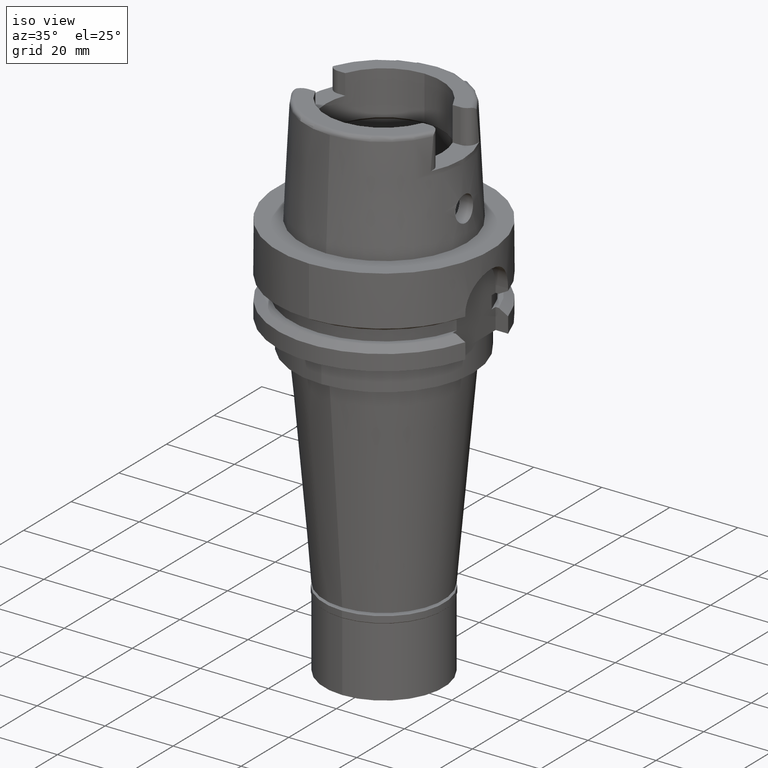
[diagram: clean part render]
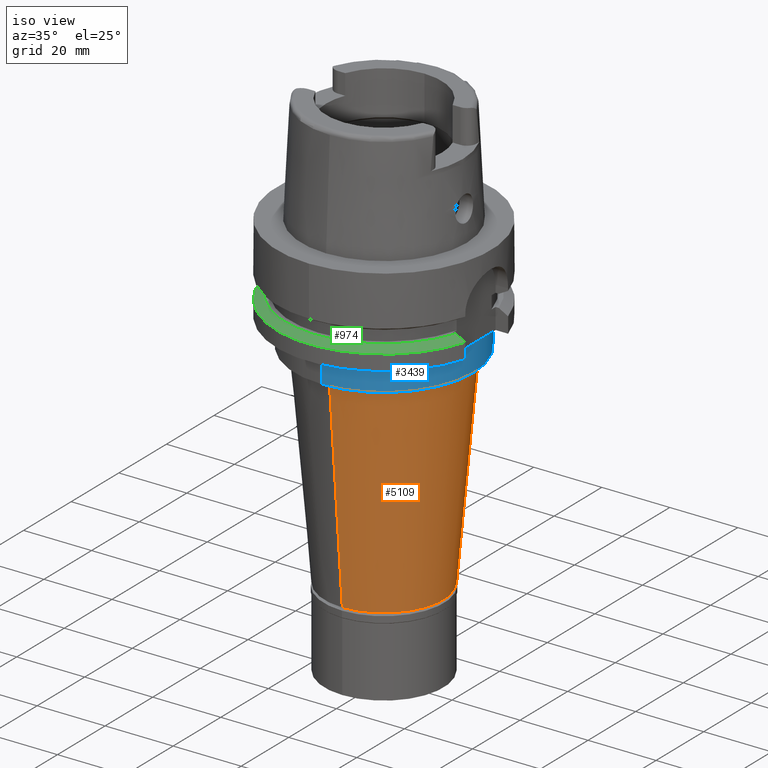
[diagram: same view with three faces highlighted in distinct colors, each labeled with its STEP entity id]
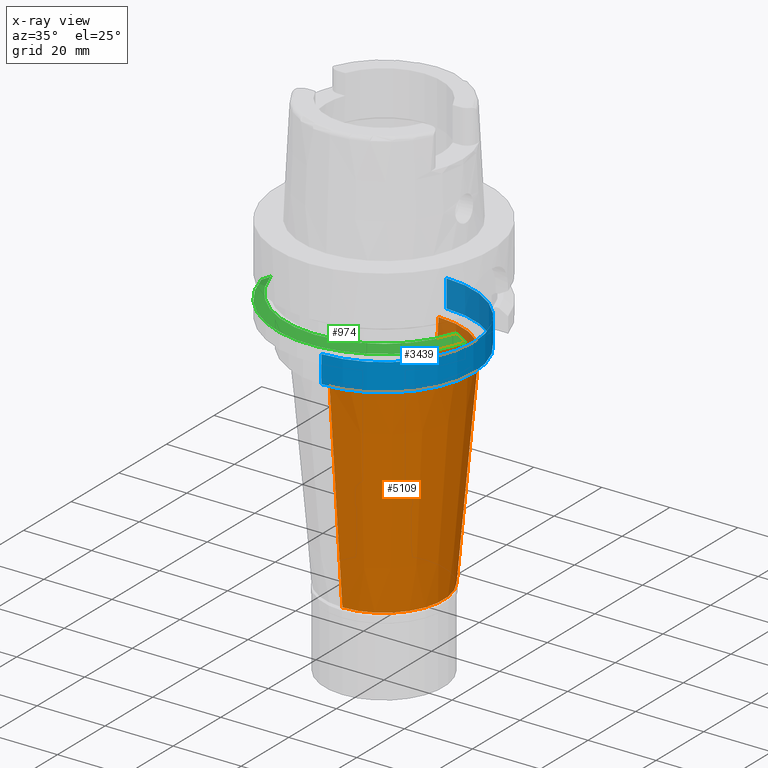
[diagram: x-ray of the same camera — body ghosted, the three highlighted faces saturated]
A machine part, iso view with three faces highlighted in distinct colors.
The next image is the same camera in x-ray (body ghosted, the three faces saturated) — at least one of them is partly hidden behind the body in this view.
Their STEP definitions:

[orange] entity #5109 — the highlighted conical surface has half-angle 5 deg.
#81 = AXIS2_PLACEMENT_3D ( 'NONE', #4989, #2386, #390 ) ;
#390 = DIRECTION ( 'NONE',  ( 0.0000000000000000000, -1.000000000000000000, 0.0000000000000000000 ) ) ;
#433 = DIRECTION ( 'NONE',  ( 0.0000000000000000000, -0.08715574274767391716, -0.9961946980917442129 ) ) ;
#445 = VECTOR ( 'NONE', #433, 1000.000000000000000 ) ;
#621 = EDGE_CURVE ( 'NONE', #4091, #2209, #2523, .T. ) ;
#793 = CIRCLE ( 'NONE', #3436, 22.89805053953999803 ) ;
#871 = VECTOR ( 'NONE', #2916, 1000.000000000000000 ) ;
#1063 = AXIS2_PLACEMENT_3D ( 'NONE', #2215, #5155, #1365 ) ;
#1365 = DIRECTION ( 'NONE',  ( 0.0000000000000000000, 1.000000000000000000, 0.0000000000000000000 ) ) ;
#1586 = CONICAL_SURFACE ( 'NONE', #1063, 20.19902526977000079, 0.08726646259969973729 ) ;
#1640 = DIRECTION ( 'NONE',  ( 0.0000000000000000000, 0.0000000000000000000, 1.000000000000000000 ) ) ;
#1997 = ORIENTED_EDGE ( 'NONE', *, *, #621, .F. ) ;
#2019 = VERTEX_POINT ( 'NONE', #3905 ) ;
#2130 = ORIENTED_EDGE ( 'NONE', *, *, #2867, .T. ) ;
#2209 = VERTEX_POINT ( 'NONE', #4072 ) ;
#2215 = CARTESIAN_POINT ( 'NONE',  ( 0.0000000000000000000, 0.0000000000000000000, -65.85000000000000853 ) ) ;
#2354 = EDGE_LOOP ( 'NONE', ( #3115, #2130, #3533, #1997 ) ) ;
#2386 = DIRECTION ( 'NONE',  ( 0.0000000000000000000, 0.0000000000000000000, 1.000000000000000000 ) ) ;
#2523 = LINE ( 'NONE', #5466, #445 ) ;
#2797 = LINE ( 'NONE', #3270, #871 ) ;
#2867 = EDGE_CURVE ( 'NONE', #2019, #3005, #2797, .T. ) ;
#2904 = CARTESIAN_POINT ( 'NONE',  ( 0.0000000000000000000, 22.89805053954999892, -35.00000000000000000 ) ) ;
#2916 = DIRECTION ( 'NONE',  ( 0.0000000000000000000, 0.08715574274767391716, -0.9961946980917442129 ) ) ;
#2928 = DIRECTION ( 'NONE',  ( 0.0000000000000000000, -1.000000000000000000, 0.0000000000000000000 ) ) ;
#3005 = VERTEX_POINT ( 'NONE', #4547 ) ;
#3074 = CIRCLE ( 'NONE', #81, 17.50000000000000000 ) ;
#3115 = ORIENTED_EDGE ( 'NONE', *, *, #4531, .F. ) ;
#3270 = CARTESIAN_POINT ( 'NONE',  ( 0.0000000000000000000, -22.89805053954999892, -35.00000000000000000 ) ) ;
#3436 = AXIS2_PLACEMENT_3D ( 'NONE', #5442, #1640, #2928 ) ;
#3462 = FACE_OUTER_BOUND ( 'NONE', #2354, .T. ) ;
#3533 = ORIENTED_EDGE ( 'NONE', *, *, #3843, .T. ) ;
#3843 = EDGE_CURVE ( 'NONE', #3005, #2209, #3074, .T. ) ;
#3905 = CARTESIAN_POINT ( 'NONE',  ( 0.0000000000000000000, -22.89805053954999892, -35.00000000000000000 ) ) ;
#4072 = CARTESIAN_POINT ( 'NONE',  ( 0.0000000000000000000, 17.50000000000000000, -96.69999999999998863 ) ) ;
#4091 = VERTEX_POINT ( 'NONE', #2904 ) ;
#4531 = EDGE_CURVE ( 'NONE', #2019, #4091, #793, .T. ) ;
#4547 = CARTESIAN_POINT ( 'NONE',  ( 0.0000000000000000000, -17.50000000000000000, -96.69999999999998863 ) ) ;
#4989 = CARTESIAN_POINT ( 'NONE',  ( 0.0000000000000000000, 0.0000000000000000000, -96.69999999999998863 ) ) ;
#5109 = ADVANCED_FACE ( 'NONE', ( #3462 ), #1586, .T. ) ;
#5155 = DIRECTION ( 'NONE',  ( 0.0000000000000000000, 0.0000000000000000000, 1.000000000000000000 ) ) ;
#5442 = CARTESIAN_POINT ( 'NONE',  ( 0.0000000000000000000, 0.0000000000000000000, -35.00000000000000000 ) ) ;
#5466 = CARTESIAN_POINT ( 'NONE',  ( 0.0000000000000000000, 22.89805053954999892, -35.00000000000000000 ) ) ;

[blue] entity #3439 — the highlighted cylindrical surface (partial cylindrical patch) has radius 26.3 mm, axis along (0, 0, 1).
#6 = DIRECTION ( 'NONE',  ( 0.0000000000000000000, 1.000000000000000000, 0.0000000000000000000 ) ) ;
#110 = CIRCLE ( 'NONE', #710, 26.30000000000000071 ) ;
#205 = CARTESIAN_POINT ( 'NONE',  ( 0.0000000000000000000, 26.30000000000000071, -34.00000000000000000 ) ) ;
#360 = EDGE_LOOP ( 'NONE', ( #3077, #5118, #3068, #707 ) ) ;
#573 = CARTESIAN_POINT ( 'NONE',  ( 0.0000000000000000000, -26.30000000000000071, -26.00000000000000000 ) ) ;
#702 = CARTESIAN_POINT ( 'NONE',  ( 0.0000000000000000000, 26.30000000000000071, -26.00000000000000000 ) ) ;
#707 = ORIENTED_EDGE ( 'NONE', *, *, #724, .F. ) ;
#710 = AXIS2_PLACEMENT_3D ( 'NONE', #844, #2139, #3438 ) ;
#724 = EDGE_CURVE ( 'NONE', #3417, #3921, #4600, .T. ) ;
#763 = EDGE_CURVE ( 'NONE', #2417, #3921, #110, .T. ) ;
#844 = CARTESIAN_POINT ( 'NONE',  ( 0.0000000000000000000, 0.0000000000000000000, -34.00000000000000000 ) ) ;
#925 = VERTEX_POINT ( 'NONE', #573 ) ;
#1363 = EDGE_CURVE ( 'NONE', #925, #2417, #3404, .T. ) ;
#1520 = CARTESIAN_POINT ( 'NONE',  ( 0.0000000000000000000, 0.0000000000000000000, 0.0000000000000000000 ) ) ;
#1613 = DIRECTION ( 'NONE',  ( 0.0000000000000000000, 0.0000000000000000000, -1.000000000000000000 ) ) ;
#1664 = DIRECTION ( 'NONE',  ( 0.0000000000000000000, 0.0000000000000000000, -1.000000000000000000 ) ) ;
#2139 = DIRECTION ( 'NONE',  ( 0.0000000000000000000, 0.0000000000000000000, 1.000000000000000000 ) ) ;
#2378 = VECTOR ( 'NONE', #2911, 1000.000000000000000 ) ;
#2385 = CARTESIAN_POINT ( 'NONE',  ( 0.0000000000000000000, -26.30000000000000071, -34.00000000000000000 ) ) ;
#2417 = VERTEX_POINT ( 'NONE', #2385 ) ;
#2549 = CARTESIAN_POINT ( 'NONE',  ( 0.0000000000000000000, 26.30000000000000071, -26.00000000000000000 ) ) ;
#2706 = AXIS2_PLACEMENT_3D ( 'NONE', #1520, #4081, #6 ) ;
#2790 = FACE_OUTER_BOUND ( 'NONE', #360, .T. ) ;
#2863 = DIRECTION ( 'NONE',  ( 0.0000000000000000000, 1.000000000000000000, 0.0000000000000000000 ) ) ;
#2911 = DIRECTION ( 'NONE',  ( 0.0000000000000000000, 0.0000000000000000000, -1.000000000000000000 ) ) ;
#3002 = AXIS2_PLACEMENT_3D ( 'NONE', #4963, #1613, #2863 ) ;
#3068 = ORIENTED_EDGE ( 'NONE', *, *, #763, .T. ) ;
#3077 = ORIENTED_EDGE ( 'NONE', *, *, #4834, .T. ) ;
#3349 = CARTESIAN_POINT ( 'NONE',  ( 0.0000000000000000000, -26.30000000000000071, -26.00000000000000000 ) ) ;
#3404 = LINE ( 'NONE', #3349, #2378 ) ;
#3417 = VERTEX_POINT ( 'NONE', #702 ) ;
#3438 = DIRECTION ( 'NONE',  ( 0.0000000000000000000, -1.000000000000000000, 0.0000000000000000000 ) ) ;
#3439 = ADVANCED_FACE ( 'NONE', ( #2790 ), #4916, .T. ) ;
#3921 = VERTEX_POINT ( 'NONE', #205 ) ;
#4081 = DIRECTION ( 'NONE',  ( 0.0000000000000000000, 0.0000000000000000000, 1.000000000000000000 ) ) ;
#4600 = LINE ( 'NONE', #2549, #4854 ) ;
#4834 = EDGE_CURVE ( 'NONE', #3417, #925, #5391, .T. ) ;
#4854 = VECTOR ( 'NONE', #1664, 1000.000000000000000 ) ;
#4916 = CYLINDRICAL_SURFACE ( 'NONE', #2706, 26.30000000000000071 ) ;
#4963 = CARTESIAN_POINT ( 'NONE',  ( 0.0000000000000000000, 0.0000000000000000000, -26.00000000000000000 ) ) ;
#5118 = ORIENTED_EDGE ( 'NONE', *, *, #1363, .T. ) ;
#5391 = CIRCLE ( 'NONE', #3002, 26.30000000000000071 ) ;

[green] entity #974 — the highlighted conical surface has half-angle 60 deg.
#41 = ORIENTED_EDGE ( 'NONE', *, *, #2661, .T. ) ;
#438 = CARTESIAN_POINT ( 'NONE',  ( -29.52968318153624594, -8.000000947996786849, -20.85397319998364907 ) ) ;
#591 = DIRECTION ( 'NONE',  ( 0.9583148474999051425, -0.2857142857143015191, 0.0000000000000000000 ) ) ;
#671 = VERTEX_POINT ( 'NONE', #4708 ) ;
#932 = B_SPLINE_CURVE_WITH_KNOTS ( 'NONE', 3,
 ( #3710, #2921, #2525, #5045 ),
 .UNSPECIFIED., .F., .F.,
 ( 4, 4 ),
 ( 0.0000000000000000000, 1.000000000000000000 ),
 .UNSPECIFIED. ) ;
#949 = VERTEX_POINT ( 'NONE', #4759 ) ;
#974 = ADVANCED_FACE ( 'NONE', ( #4870 ), #1146, .T. ) ;
#1097 = CARTESIAN_POINT ( 'NONE',  ( -27.76816318563999886, -8.000000147160998054, -19.87500000000000000 ) ) ;
#1139 = DIRECTION ( 'NONE',  ( 0.0000000000000000000, -1.000000000000000000, 0.0000000000000000000 ) ) ;
#1146 = CONICAL_SURFACE ( 'NONE', #1413, 30.19879763209999979, 1.047197551196400456 ) ;
#1178 = ORIENTED_EDGE ( 'NONE', *, *, #4763, .T. ) ;
#1316 = EDGE_LOOP ( 'NONE', ( #41, #1359, #1178, #2980 ) ) ;
#1359 = ORIENTED_EDGE ( 'NONE', *, *, #5243, .F. ) ;
#1413 = AXIS2_PLACEMENT_3D ( 'NONE', #1607, #3294, #1139 ) ;
#1607 = CARTESIAN_POINT ( 'NONE',  ( 0.0000000000000000000, 0.0000000000000000000, -20.62624953738000144 ) ) ;
#2028 = DIRECTION ( 'NONE',  ( 0.0000000000000000000, 0.0000000000000000000, -1.000000000000000000 ) ) ;
#2294 = VERTEX_POINT ( 'NONE', #1097 ) ;
#2399 = CARTESIAN_POINT ( 'NONE',  ( 30.18691769625000276, -9.000000000000000000, -21.37749907476000288 ) ) ;
#2525 = CARTESIAN_POINT ( 'NONE',  ( 28.33125883934195954, -8.999998543035536258, -20.35280924244215583 ) ) ;
#2645 = AXIS2_PLACEMENT_3D ( 'NONE', #3564, #4368, #591 ) ;
#2661 = EDGE_CURVE ( 'NONE', #2294, #949, #2943, .T. ) ;
#2889 = EDGE_CURVE ( 'NONE', #671, #2294, #4482, .T. ) ;
#2921 = CARTESIAN_POINT ( 'NONE',  ( 29.24010044504802153, -8.999999709175824592, -20.85364081948881676 ) ) ;
#2943 = B_SPLINE_CURVE_WITH_KNOTS ( 'NONE', 3,
 ( #4211, #3006, #438, #4243 ),
 .UNSPECIFIED., .F., .F.,
 ( 4, 4 ),
 ( 0.0000000000000000000, 1.000000000000000000 ),
 .UNSPECIFIED. ) ;
#2980 = ORIENTED_EDGE ( 'NONE', *, *, #2889, .T. ) ;
#3006 = CARTESIAN_POINT ( 'NONE',  ( -28.63001157150027609, -8.000000294623719199, -20.35313950919116976 ) ) ;
#3294 = DIRECTION ( 'NONE',  ( 0.0000000000000000000, 0.0000000000000000000, -1.000000000000000000 ) ) ;
#3323 = CARTESIAN_POINT ( 'NONE',  ( 0.0000000000000000000, 0.0000000000000000000, -19.87500000000000000 ) ) ;
#3564 = CARTESIAN_POINT ( 'NONE',  ( 0.0000000000000000000, 0.0000000000000000000, -21.37749907476000288 ) ) ;
#3710 = CARTESIAN_POINT ( 'NONE',  ( 30.18691769625000276, -9.000000000000000000, -21.37749907476000288 ) ) ;
#4087 = DIRECTION ( 'NONE',  ( 0.0000000000000000000, -1.000000000000000000, 0.0000000000000000000 ) ) ;
#4211 = CARTESIAN_POINT ( 'NONE',  ( -27.76816318563999886, -8.000000147160998054, -19.87500000000000000 ) ) ;
#4243 = CARTESIAN_POINT ( 'NONE',  ( -30.46719534865999890, -8.000000474154997931, -21.37750337924999755 ) ) ;
#4368 = DIRECTION ( 'NONE',  ( 0.0000000000000000000, 0.0000000000000000000, -1.000000000000000000 ) ) ;
#4482 = CIRCLE ( 'NONE', #5288, 28.89759526419000224 ) ;
#4708 = CARTESIAN_POINT ( 'NONE',  ( 27.46035345827000285, -9.000000000000000000, -19.87500000000000000 ) ) ;
#4759 = CARTESIAN_POINT ( 'NONE',  ( -30.46719534865999890, -8.000000474154997931, -21.37750337924999755 ) ) ;
#4763 = EDGE_CURVE ( 'NONE', #5388, #671, #932, .T. ) ;
#4870 = FACE_OUTER_BOUND ( 'NONE', #1316, .T. ) ;
#4943 = CIRCLE ( 'NONE', #2645, 31.49999999999999645 ) ;
#5045 = CARTESIAN_POINT ( 'NONE',  ( 27.46035345827000285, -9.000000000000000000, -19.87500000000000000 ) ) ;
#5243 = EDGE_CURVE ( 'NONE', #5388, #949, #4943, .T. ) ;
#5288 = AXIS2_PLACEMENT_3D ( 'NONE', #3323, #2028, #4087 ) ;
#5388 = VERTEX_POINT ( 'NONE', #2399 ) ;